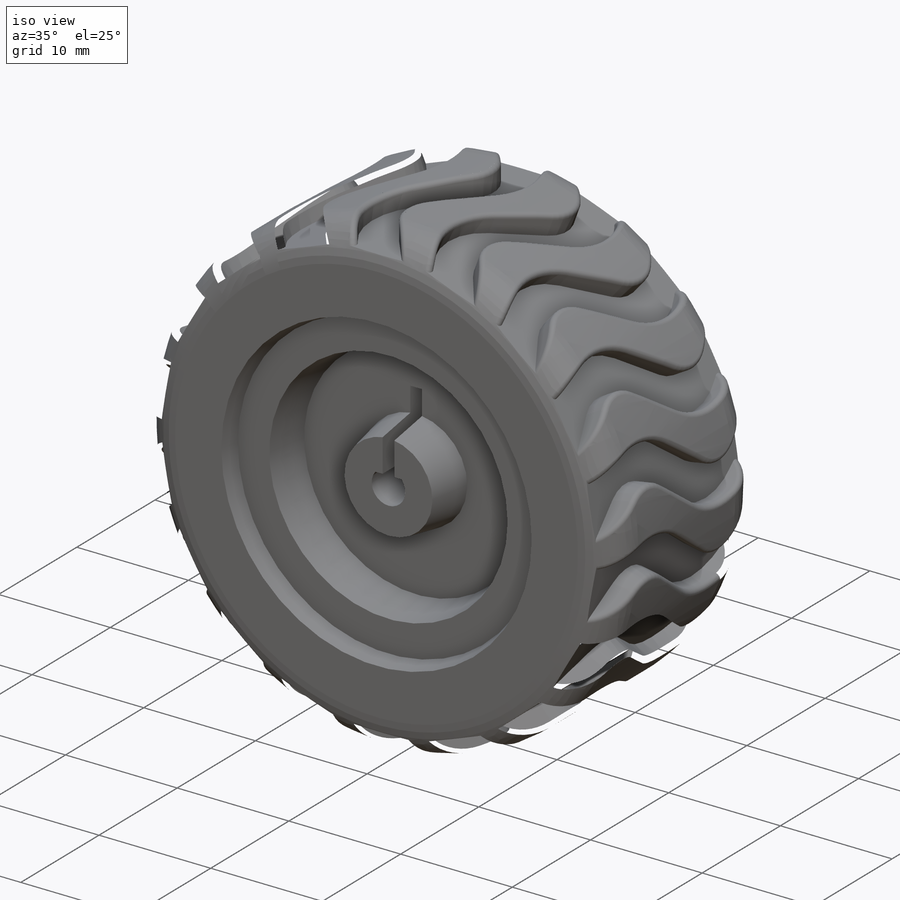
[diagram: iso view]
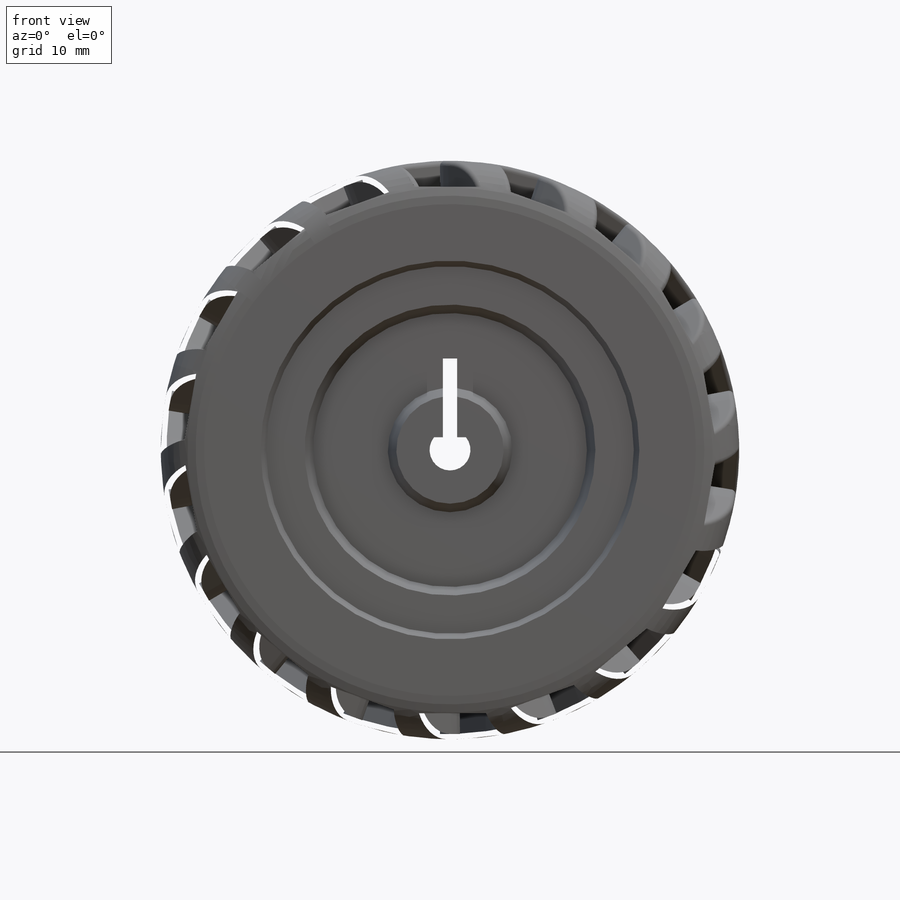
[diagram: front view]
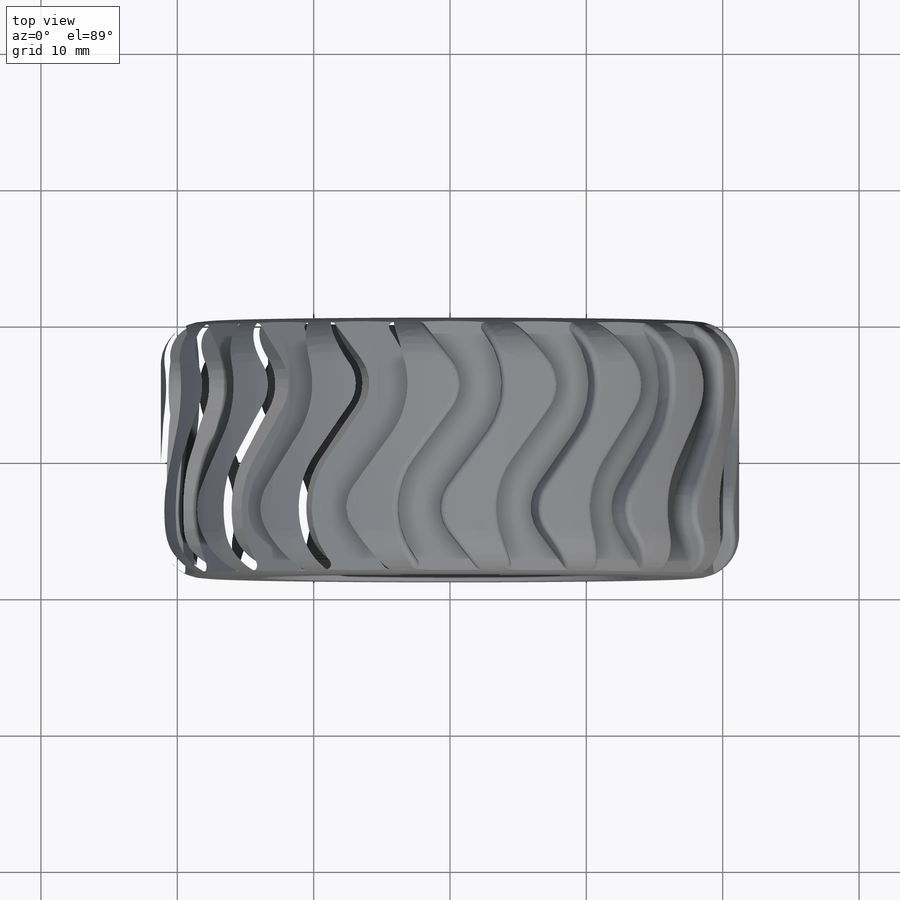
[diagram: top view]
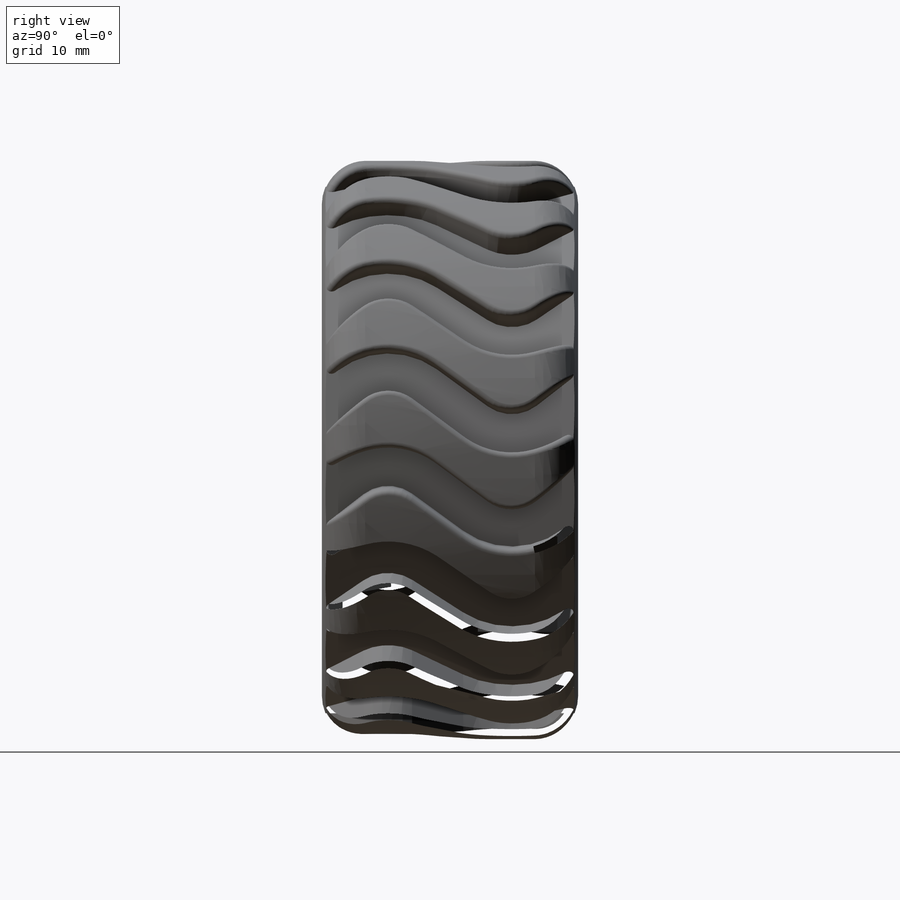
[diagram: right view]
SOLIDWORKS PART (.sldprt)
format: sldprt  version: not decoded by parser v0  size: 1,555,456 bytes
history: native  units: mm
features: sketch x8, cut_extrude x5, extrude x3, fillet x2, chamfer x2, material x1, plane x1, pattern_circular x1 (+13 scaffold rows collapsed)
feature tree (36):
  scaffold x13  (default folders/planes/origin — collapsed)
  material  "Material <not specified>"
  sketch  "Sketch1"  dims[D1=42.418mm D2=26.416mm]
  extrude  "Boss-Extrude1"  Depth=18.796mm
  fillet  "Fillet1"  Radius=3.175mm
  sketch  "Sketch2"
  extrude  "Boss-Extrude2"  Depth=1.524mm
  sketch  "Sketch4"  dims[D2=7.874mm D1=2.54mm]
  cut_extrude  "Cut-Extrude2"  Depth=3.556mm
  sketch  "Sketch5"  dims[D1=2.54mm]
  cut_extrude  "Cut-Extrude3"  Depth=2.54mm
  sketch  "Sketch6"  dims[D1=8.255mm]
  extrude  "Boss-Extrude3"  Depth=3.81mm
  sketch  "Sketch3"  dims[D1=3.0mm D2=2.4384mm D3=1.0414mm]
  cut_extrude  "Cut-Extrude1"  Depth=20.32mm
  chamfer  "Chamfer2"  Distance=2.54mm Angle=15.06deg
  chamfer  "Chamfer3"  Distance=2.54mm Angle=15.06deg
  sketch  "Sketch8"  dims[c1.D1=3.175mm c1.D2=~6.429594mm c1.D3=~28.609343mm c2.D3=15.0deg c2.D4=12.0]
  cut_extrude  "Cut-Extrude4"  [1 undecoded]
  plane  "Plane1"  Offset=22.86mm
  sketch  "Sketch9"  dims[D1=1.524mm D2=1.524mm]
  cut_extrude  "Cut-Extrude5"  Depth=3.556mm
  fillet  "Fillet2"  Radius=0.381mm
  pattern_circular  "CirPattern1"  Count=18 Angle=20deg
decode coverage: 19 of 21 modeling features carry decoded parameters
note: ~ marks probable driven/reference dimensions
note: 1 parameter value undecoded
note: suppression state not decoded; provenance and decode notes live in map.json
